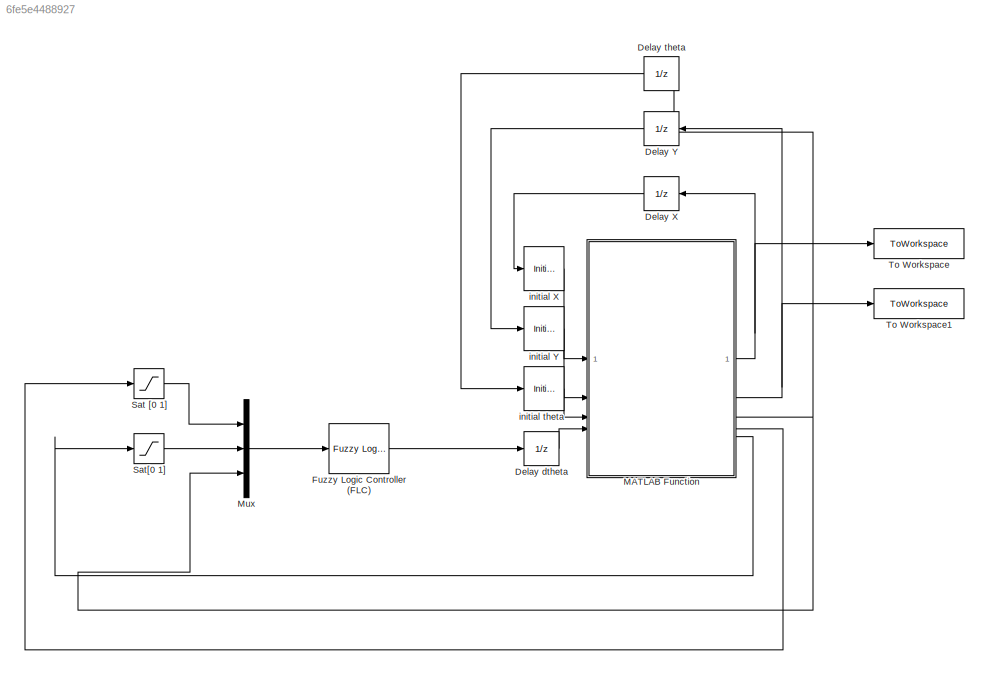
MODEL slx_6fe5e4488927
KIND model
CONFIG AbsTol = auto
CONFIG EnableMultiTasking = off
CONFIG FixedStep = auto
CONFIG MaxStep = auto
CONFIG MinStep = auto
CONFIG RelTol = 1e-3
CONFIG SampleTimeConstraint = Unconstrained
CONFIG SolverName = VariableStepAuto
CONFIG StartTime = 0.0
CONFIG StopTime = 250
BLOCK [UnitDelay] Delay X
  HasFrameUpgradeWarning = on
  SampleTime = Ts
BLOCK [UnitDelay] Delay Y
  HasFrameUpgradeWarning = on
  SampleTime = Ts
BLOCK [UnitDelay] Delay dtheta
  HasFrameUpgradeWarning = on
  SampleTime = Ts
BLOCK [UnitDelay] Delay theta
  HasFrameUpgradeWarning = on
  SampleTime = Ts
BLOCK [Reference] Fuzzy Logic Controller (FLC)  REF=fuzblock/Fuzzy Logic   (lib defined in mdl_858b3b3e7478)
Controller 
with Ruleviewer
  SourceBlock = fuzblock/Fuzzy Logic \nController \nwith Ruleviewer
  SourceType = Fuzzy Inference System
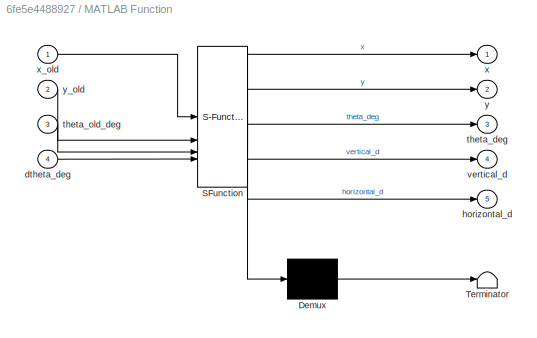
BLOCK [SubSystem] MATLAB Function
  ErrorFcn = Stateflow.Translate.translate
  PermitHierarchicalResolution = ExplicitOnly
  SFBlockType = MATLAB Function
  TreatAsAtomicUnit = on
BLOCK [Demux] MATLAB Function/ Demux 
  Outputs = 1
BLOCK [S-Function] MATLAB Function/ SFunction 
  EnableBusSupport = on
  FunctionName = sf_sfun
  PortCounts = [4 6]
  SFcnIsStateOwnerBlock = off
  SFunctionDeploymentMode = off
  Tag = Stateflow S-Function 2
BLOCK [Terminator] MATLAB Function/ Terminator 
BLOCK [Inport] MATLAB Function/dtheta_deg
  Port = 4
BLOCK [Outport] MATLAB Function/horizontal_d
  Port = 5
BLOCK [Outport] MATLAB Function/theta_deg
  Port = 3
BLOCK [Inport] MATLAB Function/theta_old_deg
  Port = 3
BLOCK [Outport] MATLAB Function/vertical_d
  Port = 4
BLOCK [Outport] MATLAB Function/x
BLOCK [Inport] MATLAB Function/x_old
BLOCK [Outport] MATLAB Function/y
  Port = 2
BLOCK [Inport] MATLAB Function/y_old
  Port = 2
BLOCK [Mux] Mux
  DisplayOption = bar
  Inputs = 3
BLOCK [Saturate] Sat [0 1]
  LowerLimit = 0
  UpperLimit = 1
BLOCK [Saturate] Sat[0 1]
  LowerLimit = 0
  UpperLimit = 1
BLOCK [ToWorkspace] To Workspace
  FixptAsFi = on
  MaxDataPoints = inf
  SampleTime = -1
  SaveFormat = Timeseries
  VariableName = X
BLOCK [ToWorkspace] To Workspace1
  FixptAsFi = on
  MaxDataPoints = inf
  SampleTime = -1
  SaveFormat = Timeseries
  VariableName = Y
BLOCK [InitialCondition] initial X
  Value = xs
BLOCK [InitialCondition] initial Y
  Value = ys
BLOCK [InitialCondition] initial theta
  Value = theta
LINE Delay X:1 -> initial X:1
LINE Delay Y:1 -> initial Y:1
LINE Delay dtheta:1 -> MATLAB Function:4
LINE Delay theta:1 -> initial theta:1
LINE Fuzzy Logic Controller (FLC):1 -> Delay dtheta:1
NET MATLAB Function:1 -> Delay X:1, To Workspace:1
NET MATLAB Function:2 -> Delay Y:1, To Workspace1:1
NET MATLAB Function:3 -> Delay theta:1, Mux:3
LINE MATLAB Function:4 -> Sat [0 1]:1
LINE MATLAB Function:5 -> Sat[0 1]:1
LINE Mux:1 -> Fuzzy Logic Controller (FLC):1
LINE Sat [0 1]:1 -> Mux:1
LINE Sat[0 1]:1 -> Mux:2
LINE initial X:1 -> MATLAB Function:1
LINE initial Y:1 -> MATLAB Function:2
LINE initial theta:1 -> MATLAB Function:3
note: NET lines group one-source signal fan-out (src -> all destinations, sorted); 1:1 wires keep LINE
CHART MATLAB Function states=1 transitions=1
  STATE_LABEL 'eML_blk_kernel()'
  STATE_LABEL 'SCRIPT:\nfunction [x, y, theta_deg, vertical_d, horizontal_d] = car(x_old, y_old, theta_old_deg, dtheta_deg)\n    % Local variables\n    if(x_old >= 10)\n        u = 0;\n    else\n        u = 0.05;       % Constant car velocity \n    end\n    \n    t = 0.5;       % Delay between each calculation\n    \n    % Calculate the new angle of the car:\n    theta_deg = wrapTo180(theta_old_deg + dtheta_deg);\n    \n    %...<+731ch>'
CHART  states=0 transitions=0
